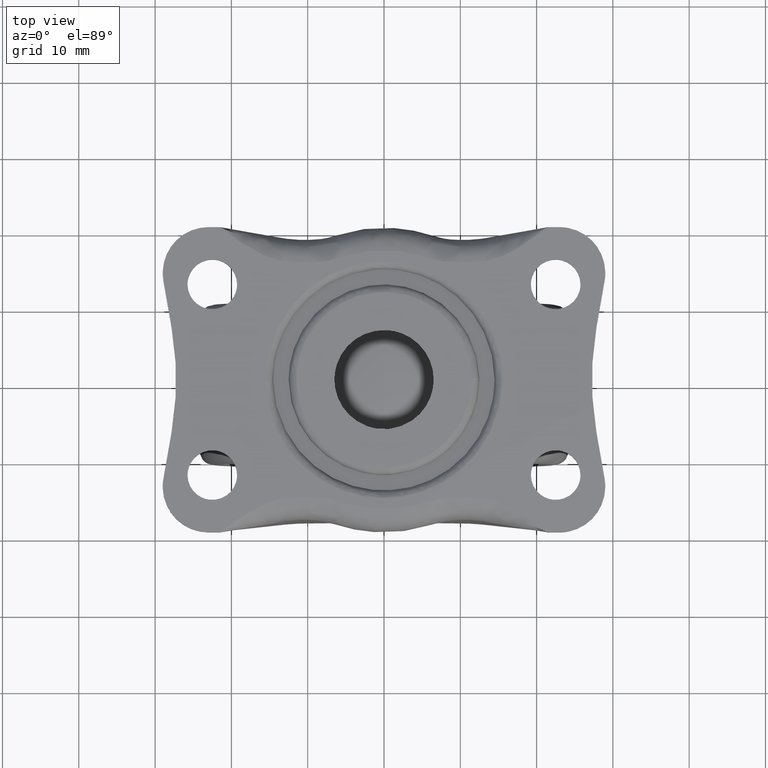
[diagram: clean part render]
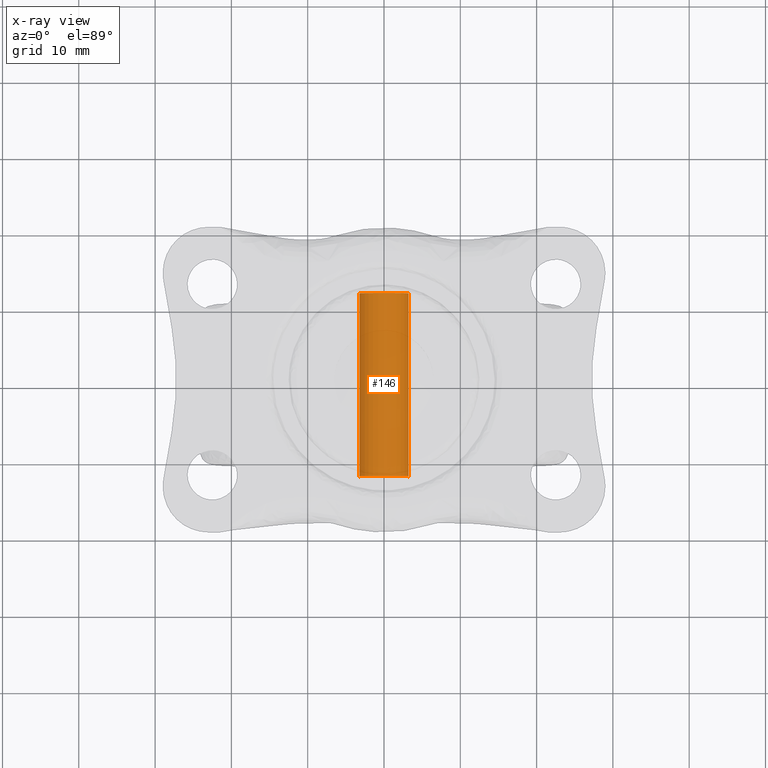
[diagram: x-ray — body ghosted, one internal face saturated and labeled with its STEP entity id]
A machine part, top view, then the same camera in x-ray: the body is ghosted and one INTERNAL B-rep face — a face not visible from any outside direction — is saturated and labeled: STEP entity #146.
In plain terms, the highlighted face is a freeform B-spline surface patch.
Its self-contained STEP definition (entity closure, byte-faithful):
#44=CARTESIAN_POINT('',(3.227280960682006,12.599999999999818,-0.383611262634474));
#45=CARTESIAN_POINT('',(3.238259750208059,12.599999999999817,-0.291247868073434));
#46=CARTESIAN_POINT('',(3.243938094871157,12.599999999999820,-0.198407753488290));
#47=CARTESIAN_POINT('',(3.442345848359449,12.599999999999818,3.045530341382868));
#48=CARTESIAN_POINT('',(0.198407753488291,12.599999999999820,3.243938094871158));
#49=CARTESIAN_POINT('',(-3.045530341382865,12.599999999999818,3.442345848359449));
#50=CARTESIAN_POINT('',(-3.243938094871157,12.599999999999820,0.198407753488292));
#51=CARTESIAN_POINT('',(3.227280960682006,-12.614999999999997,-0.383611262634474));
#52=CARTESIAN_POINT('',(3.238259750208059,-12.614999999999998,-0.291247868073434));
#53=CARTESIAN_POINT('',(3.243938094871157,-12.615000000000000,-0.198407753488290));
#54=CARTESIAN_POINT('',(3.442345848359449,-12.614999999999997,3.045530341382868));
#55=CARTESIAN_POINT('',(0.198407753488291,-12.615000000000000,3.243938094871158));
#56=CARTESIAN_POINT('',(-3.045530341382865,-12.614999999999997,3.442345848359449));
#57=CARTESIAN_POINT('',(-3.243938094871157,-12.615000000000000,0.198407753488292));
#65=(BOUNDED_SURFACE()B_SPLINE_SURFACE(2,1,((#44,#51),(#45,#52),(#46,#53),(#47,#54),(#48,#55),(#49,#56),(#50,#57)),.UNSPECIFIED.,.F.,.F.,.U.)B_SPLINE_SURFACE_WITH_KNOTS((3,2,2,3),(2,2),(0.0,0.215391052434016,5.600167363284400,10.984943674134779),(0.0,25.214999999999819),.UNSPECIFIED.)GEOMETRIC_REPRESENTATION_ITEM()RATIONAL_B_SPLINE_SURFACE(((0.977505800795127,0.977505800795127),(0.988284271247462,0.988284271247462),(1.0,1.0),(0.707106781186548,0.707106781186548),(1.0,1.0),(0.707106781186548,0.707106781186548),(1.0,1.0)))REPRESENTATION_ITEM('')SURFACE());
#66=CARTESIAN_POINT('',(3.227280960680476,-12.0,-0.383611262647340));
#67=VERTEX_POINT('',#66);
#68=CARTESIAN_POINT('',(0.0,-12.0,3.250000000000092));
#69=VERTEX_POINT('',#68);
#70=CARTESIAN_POINT('',(3.227280960680476,-12.000000000000004,-0.383611262647340));
#71=CARTESIAN_POINT('',(3.250000000000090,-11.999999999999995,-0.192478388881714));
#72=CARTESIAN_POINT('',(3.250000000000090,-12.0,1.224606E-015));
#73=CARTESIAN_POINT('',(3.250000000000090,-12.0,3.250000000000092));
#74=CARTESIAN_POINT('',(0.0,-12.0,3.250000000000092));
#82=(BOUNDED_CURVE()B_SPLINE_CURVE(2,(#70,#71,#72,#73,#74),.UNSPECIFIED.,.F.,.U.)B_SPLINE_CURVE_WITH_KNOTS((3,2,3),(0.229562473514297,0.250000000000000,0.500000000000000),.UNSPECIFIED.)CURVE()GEOMETRIC_REPRESENTATION_ITEM()RATIONAL_B_SPLINE_CURVE((0.956026754185245,0.976055948332069,1.0,0.707106781186547,1.0))REPRESENTATION_ITEM(''));
#83=EDGE_CURVE('',#67,#69,#82,.T.);
#84=ORIENTED_EDGE('',*,*,#83,.T.);
#85=CARTESIAN_POINT('',(-3.243938094864129,-12.0,0.198407753603210));
#86=VERTEX_POINT('',#85);
#87=CARTESIAN_POINT('',(0.0,-12.0,3.250000000000092));
#88=CARTESIAN_POINT('',(-3.057294717226583,-12.000000000000002,3.250000000000091));
#89=CARTESIAN_POINT('',(-3.243938094864129,-12.0,0.198407753603210));
#97=(BOUNDED_CURVE()B_SPLINE_CURVE(2,(#87,#88,#89),.UNSPECIFIED.,.F.,.U.)B_SPLINE_CURVE_WITH_KNOTS((3,3),(0.500000000000000,0.739332962229744),.UNSPECIFIED.)CURVE()GEOMETRIC_REPRESENTATION_ITEM()RATIONAL_B_SPLINE_CURVE((1.0,0.719603993297488,0.976072041647002))REPRESENTATION_ITEM(''));
#98=EDGE_CURVE('',#69,#86,#97,.T.);
#99=ORIENTED_EDGE('',*,*,#98,.T.);
#100=CARTESIAN_POINT('',(-3.243938094864129,11.999999999999821,0.198407753603210));
#101=VERTEX_POINT('',#100);
#102=CARTESIAN_POINT('',(-3.243938094864129,11.999999999999821,0.198407753603210));
#103=CARTESIAN_POINT('',(-3.243938094864129,-12.0,0.198407753603210));
#104=QUASI_UNIFORM_CURVE('',1,(#102,#103),.UNSPECIFIED.,.F.,.U.);
#105=EDGE_CURVE('',#101,#86,#104,.T.);
#106=ORIENTED_EDGE('',*,*,#105,.F.);
#107=CARTESIAN_POINT('',(0.0,11.999999999999821,3.250000000000092));
#108=VERTEX_POINT('',#107);
#109=CARTESIAN_POINT('',(0.0,11.999999999999821,3.250000000000092));
#110=CARTESIAN_POINT('',(-3.057294717226583,11.999999999999821,3.250000000000091));
#111=CARTESIAN_POINT('',(-3.243938094864129,11.999999999999826,0.198407753603210));
#119=(BOUNDED_CURVE()B_SPLINE_CURVE(2,(#109,#110,#111),.UNSPECIFIED.,.F.,.U.)B_SPLINE_CURVE_WITH_KNOTS((3,3),(0.500000000000000,0.739332962229744),.UNSPECIFIED.)CURVE()GEOMETRIC_REPRESENTATION_ITEM()RATIONAL_B_SPLINE_CURVE((1.0,0.719603993297488,0.976072041647002))REPRESENTATION_ITEM(''));
#120=EDGE_CURVE('',#108,#101,#119,.T.);
#121=ORIENTED_EDGE('',*,*,#120,.F.);
#122=CARTESIAN_POINT('',(3.227280960680476,11.999999999999821,-0.383611262647340));
#123=VERTEX_POINT('',#122);
#124=CARTESIAN_POINT('',(3.227280960680476,11.999999999999828,-0.383611262647340));
#125=CARTESIAN_POINT('',(3.250000000000090,11.999999999999821,-0.192478388881714));
#126=CARTESIAN_POINT('',(3.250000000000090,11.999999999999821,1.224606E-015));
#127=CARTESIAN_POINT('',(3.250000000000090,11.999999999999819,3.250000000000092));
#128=CARTESIAN_POINT('',(0.0,11.999999999999821,3.250000000000092));
#136=(BOUNDED_CURVE()B_SPLINE_CURVE(2,(#124,#125,#126,#127,#128),.UNSPECIFIED.,.F.,.U.)B_SPLINE_CURVE_WITH_KNOTS((3,2,3),(0.229562473514297,0.250000000000000,0.500000000000000),.UNSPECIFIED.)CURVE()GEOMETRIC_REPRESENTATION_ITEM()RATIONAL_B_SPLINE_CURVE((0.956026754185245,0.976055948332069,1.0,0.707106781186547,1.0))REPRESENTATION_ITEM(''));
#137=EDGE_CURVE('',#123,#108,#136,.T.);
#138=ORIENTED_EDGE('',*,*,#137,.F.);
#139=CARTESIAN_POINT('',(3.227280960680476,11.999999999999821,-0.383611262647340));
#140=CARTESIAN_POINT('',(3.227280960680476,-12.0,-0.383611262647340));
#141=QUASI_UNIFORM_CURVE('',1,(#139,#140),.UNSPECIFIED.,.F.,.U.);
#142=EDGE_CURVE('',#123,#67,#141,.T.);
#143=ORIENTED_EDGE('',*,*,#142,.T.);
#144=EDGE_LOOP('',(#84,#99,#106,#121,#138,#143));
#145=FACE_OUTER_BOUND('',#144,.T.);
#146=ADVANCED_FACE('',(#145),#65,.F.);